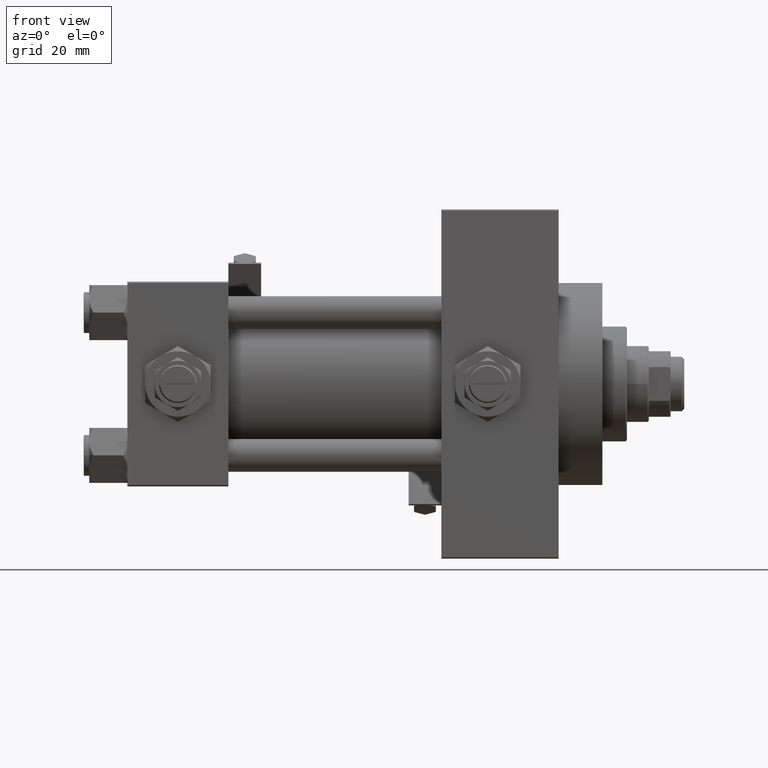
[diagram: clean part render]
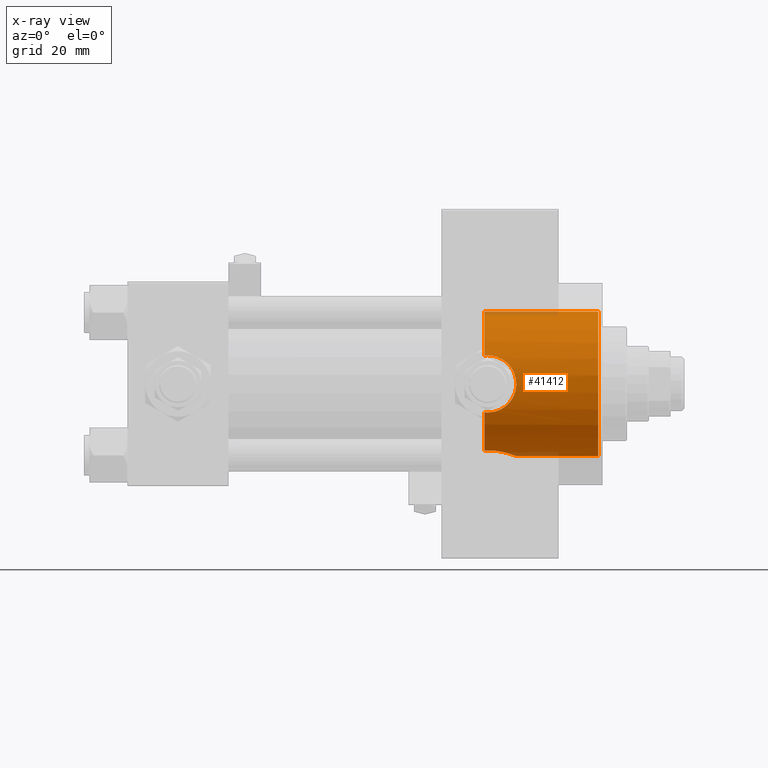
[diagram: x-ray — body ghosted, one internal face saturated and labeled with its STEP entity id]
A machine part, front view, then the same camera in x-ray: the body is ghosted and one INTERNAL B-rep face — a face not visible from any outside direction — is saturated and labeled: STEP entity #41412.
In plain terms, the highlighted cylindrical surface (partial cylindrical patch) has radius 26.5 mm, axis along (1, 0, 0).
Its self-contained STEP definition (entity closure, byte-faithful):
#262 = VERTEX_POINT ( 'NONE', #30869 ) ;
#324 = CARTESIAN_POINT ( 'NONE',  ( 130.7400000000000091, 0.000000000000000000, 0.000000000000000000 ) ) ;
#1362 = CARTESIAN_POINT ( 'NONE',  ( 132.0000000000000000, -24.33967132070604933, 10.47999999999998799 ) ) ;
#1422 = CARTESIAN_POINT ( 'NONE',  ( 141.8335546017134448, -3.642695553053290958, -26.25084325021122922 ) ) ;
#1675 = CARTESIAN_POINT ( 'NONE',  ( 135.5115735695664227, -9.881194972351261541, -24.58915736193083390 ) ) ;
#2188 = CARTESIAN_POINT ( 'NONE',  ( 142.0665133812162537, -2.938253791439163987, -26.33899517628734088 ) ) ;
#2271 = CARTESIAN_POINT ( 'NONE',  ( 140.8904987776702455, -25.91192981801192730, 5.559420023815748735 ) ) ;
#2354 = ORIENTED_EDGE ( 'NONE', *, *, #29650, .T. ) ;
#2533 = CARTESIAN_POINT ( 'NONE',  ( 136.6659000583123031, -24.77500862834707362, 9.408993987884874954 ) ) ;
#2591 = CARTESIAN_POINT ( 'NONE',  ( 130.7400000000000091, -24.37226292324946542, -10.40398000767012299 ) ) ;
#2642 = CIRCLE ( 'NONE', #6829, 26.50000000000000355 ) ;
#2787 = CARTESIAN_POINT ( 'NONE',  ( 136.3489237122697659, -24.72318467201153425, -9.541179571695405315 ) ) ;
#3044 = CARTESIAN_POINT ( 'NONE',  ( 132.6904960883777846, -24.33967132070604578, -10.47999999999998622 ) ) ;
#3439 = B_SPLINE_CURVE_WITH_KNOTS ( 'NONE', 3,
 ( #1362, #46070, #41628, #49230 ),
 .UNSPECIFIED., .F., .F.,
 ( 4, 4 ),
 ( 0.03437190755806009829, 0.03561776921873222035 ),
 .UNSPECIFIED. ) ;
#3454 = VERTEX_POINT ( 'NONE', #48166 ) ;
#3704 = ORIENTED_EDGE ( 'NONE', *, *, #7615, .T. ) ;
#5102 = CARTESIAN_POINT ( 'NONE',  ( 138.3983008714430412, -8.308216825530742256, -25.16494175890555596 ) ) ;
#5357 = VERTEX_POINT ( 'NONE', #17874 ) ;
#5368 = CARTESIAN_POINT ( 'NONE',  ( 142.4800000000001603, 1.044554930096985600E-14, -26.50000000000006750 ) ) ;
#5544 = CIRCLE ( 'NONE', #24767, 26.50000000000000355 ) ;
#5614 = CARTESIAN_POINT ( 'NONE',  ( 139.9981355541606547, -6.811571481472481260, -25.61680511670812876 ) ) ;
#5856 = CARTESIAN_POINT ( 'NONE',  ( 130.7400000000000091, 0.000000000000000000, 0.000000000000000000 ) ) ;
#5953 = CARTESIAN_POINT ( 'NONE',  ( 139.1663633815065566, -25.37171319999175623, 7.654298772871978684 ) ) ;
#6115 = CARTESIAN_POINT ( 'NONE',  ( 138.6874981071936759, -8.077221093107572969, -25.24030799844106454 ) ) ;
#6457 = CARTESIAN_POINT ( 'NONE',  ( 138.4049404352971351, -25.16229795609818609, -8.322848467437516717 ) ) ;
#6829 = AXIS2_PLACEMENT_3D ( 'NONE', #43183, #35610, #51563 ) ;
#6970 = CARTESIAN_POINT ( 'NONE',  ( 142.4626037639855838, -26.49310609510638770, -0.6963515910539429532 ) ) ;
#7615 = EDGE_CURVE ( 'NONE', #5357, #16522, #49449, .T. ) ;
#8513 = EDGE_CURVE ( 'NONE', #26704, #262, #48174, .T. ) ;
#9017 = CARTESIAN_POINT ( 'NONE',  ( 142.1654842721634111, -2.575241489874372736, -26.37710048711162969 ) ) ;
#9280 = CARTESIAN_POINT ( 'NONE',  ( 142.4800000000000466, -0.7466733969459936615, -26.50000000000001421 ) ) ;
#9529 = CARTESIAN_POINT ( 'NONE',  ( 142.4800000000001603, 1.044554930096985600E-14, -26.50000000000006750 ) ) ;
#9682 = CARTESIAN_POINT ( 'NONE',  ( 130.7400000000000091, -24.37226292324946542, -10.40398000767012299 ) ) ;
#10023 = DIRECTION ( 'NONE',  ( 0.000000000000000000, 0.000000000000000000, -1.000000000000000000 ) ) ;
#10372 = CARTESIAN_POINT ( 'NONE',  ( 138.3864792908362631, -25.16230905708523480, 8.316254619809530624 ) ) ;
#10536 = DIRECTION ( 'NONE',  ( 1.000000000000000000, -0.000000000000000000, -0.000000000000000000 ) ) ;
#10720 = ORIENTED_EDGE ( 'NONE', *, *, #24506, .T. ) ;
#11951 = CARTESIAN_POINT ( 'NONE',  ( 132.0000000000000000, -24.33967132070604933, 10.47999999999998799 ) ) ;
#12197 = CARTESIAN_POINT ( 'NONE',  ( 132.6982936874238703, -24.33967132070605288, 10.47999999999998799 ) ) ;
#13253 = VERTEX_POINT ( 'NONE', #30522 ) ;
#13458 = CARTESIAN_POINT ( 'NONE',  ( 137.8022832347253086, -8.734885810676995987, -25.02004257437574708 ) ) ;
#14041 = CARTESIAN_POINT ( 'NONE',  ( 138.1110651716822701, -25.09360970262139645, 8.520611273842991551 ) ) ;
#14303 = CARTESIAN_POINT ( 'NONE',  ( 136.6580558779861008, -24.77960996754317691, -9.394203453174519325 ) ) ;
#14558 = CARTESIAN_POINT ( 'NONE',  ( 134.3947302122628287, -24.45488967133339386, 10.20851256290625741 ) ) ;
#14680 = EDGE_CURVE ( 'NONE', #33883, #13253, #5544, .T. ) ;
#14814 = CARTESIAN_POINT ( 'NONE',  ( 139.8811664359166400, -25.58300917221410486, -6.916171625962123315 ) ) ;
#15073 = CARTESIAN_POINT ( 'NONE',  ( 140.5155153844949893, -25.78569419426081311, -6.118106053452856408 ) ) ;
#15638 = B_SPLINE_CURVE_WITH_KNOTS ( 'NONE', 3,
 ( #22151, #3044, #42020, #17971, #31040, #2787, #14303, #30262, #26075, #6457, #22398, #50907, #14814, #26587, #15073, #18742, #30520, #37849, #42793, #38883, #38362, #6970, #33933, #34703, #19001, #25813, #22672, #38107, #42535, #49885, #30772, #45952, #2271, #38627, #41775, #5953, #46209, #10372, #14041, #26329, #2533, #18488, #34449, #50394, #14558, #50649, #12197, #51694 ),
 .UNSPECIFIED., .F., .F.,
 ( 4, 2, 2, 2, 2, 2, 2, 2, 2, 2, 2, 2, 2, 2, 2, 2, 2, 2, 2, 2, 2, 2, 2, 4 ),
 ( 0.001255586767787714641, 0.003325356817179755085, 0.005395126866571796180, 0.006430011891267852289, 0.007464896915963908398, 0.009534666965355952095, 0.01056955199005197438, 0.01160443701474799492, 0.01367420706413999265, 0.01574397711353198864, 0.01677886213822798664, 0.01781374716292398463, 0.01988351721231598410, 0.02091840223701198556, 0.02195328726170798356, 0.02298817228640397808, 0.02402305731109997608, 0.02609282736049197207, 0.02712771238518797007, 0.02816259740988396806, 0.03023236745927596406, 0.03126725248397199675, 0.03230213750866803291, 0.03437190755806009829 ),
 .UNSPECIFIED. ) ;
#16522 = VERTEX_POINT ( 'NONE', #39859 ) ;
#17043 = VERTEX_POINT ( 'NONE', #11951 ) ;
#17368 = CARTESIAN_POINT ( 'NONE',  ( 141.6993435614955956, -3.985990130492289563, -26.20070574291654353 ) ) ;
#17589 = CIRCLE ( 'NONE', #42640, 26.50000000000000355 ) ;
#17632 = CARTESIAN_POINT ( 'NONE',  ( 133.7216423275558839, -10.36418010715236093, -24.38933169417625635 ) ) ;
#17777 = CARTESIAN_POINT ( 'NONE',  ( 131.1611364518797984, -24.35049096341793273, -10.45498279016080012 ) ) ;
#17874 = CARTESIAN_POINT ( 'NONE',  ( 130.7400000000000091, 3.245314017740486554E-15, 26.50000000000000355 ) ) ;
#17971 = CARTESIAN_POINT ( 'NONE',  ( 134.7461877943154036, -24.48462605612511567, -10.13781324604277145 ) ) ;
#18488 = CARTESIAN_POINT ( 'NONE',  ( 135.7173844672076939, -24.61993612039166024, 9.804529592362708712 ) ) ;
#18742 = CARTESIAN_POINT ( 'NONE',  ( 141.0816778311290136, -25.97633853132261450, -5.273786452924785983 ) ) ;
#19001 = CARTESIAN_POINT ( 'NONE',  ( 142.4114040688937735, -26.47265107862980926, 1.382412405478187001 ) ) ;
#20287 = AXIS2_PLACEMENT_3D ( 'NONE', #5856, #10536, #10023 ) ;
#22061 = CARTESIAN_POINT ( 'NONE',  ( 136.8603660912149849, -9.291949300782544441, -24.81826977973610937 ) ) ;
#22100 = ORIENTED_EDGE ( 'NONE', *, *, #34244, .T. ) ;
#22151 = CARTESIAN_POINT ( 'NONE',  ( 132.0000000000000000, -24.33967132070604933, -10.47999999999998444 ) ) ;
#22398 = CARTESIAN_POINT ( 'NONE',  ( 138.9276451403626993, -25.30216499957183984, -7.893159106980509598 ) ) ;
#22672 = CARTESIAN_POINT ( 'NONE',  ( 142.1219222710722647, -26.36027543327035261, 2.738055544399092600 ) ) ;
#23853 = DIRECTION ( 'NONE',  ( 1.000000000000000000, 0.000000000000000000, 0.000000000000000000 ) ) ;
#24506 = EDGE_CURVE ( 'NONE', #26704, #13253, #50387, .T. ) ;
#24623 = DIRECTION ( 'NONE',  ( 0.000000000000000000, 0.000000000000000000, -1.000000000000000000 ) ) ;
#24767 = AXIS2_PLACEMENT_3D ( 'NONE', #324, #23853, #24623 ) ;
#24871 = CARTESIAN_POINT ( 'NONE',  ( 130.7400000000000091, 0.000000000000000000, -26.50000000000000355 ) ) ;
#24965 = CARTESIAN_POINT ( 'NONE',  ( 131.4868983507927283, -10.49443499905852661, -24.33364968799253703 ) ) ;
#25265 = CARTESIAN_POINT ( 'NONE',  ( 130.7400000000000091, -24.37226292324946186, 10.40398000767012654 ) ) ;
#25542 = CARTESIAN_POINT ( 'NONE',  ( 130.7400000000000091, 0.000000000000000000, 0.000000000000000000 ) ) ;
#25813 = CARTESIAN_POINT ( 'NONE',  ( 142.2075249541714754, -26.39335609204158573, 2.399236127628234794 ) ) ;
#25977 = FACE_OUTER_BOUND ( 'NONE', #40367, .T. ) ;
#26075 = CARTESIAN_POINT ( 'NONE',  ( 137.5577538920436496, -24.96463143003449758, -8.891425016462831010 ) ) ;
#26329 = CARTESIAN_POINT ( 'NONE',  ( 137.2636119660473923, -24.89625137302611080, 9.087734872939162045 ) ) ;
#26587 = CARTESIAN_POINT ( 'NONE',  ( 140.3132647636415413, -25.71940794313461254, -6.390292897823897533 ) ) ;
#26704 = VERTEX_POINT ( 'NONE', #5368 ) ;
#26996 = ORIENTED_EDGE ( 'NONE', *, *, #37298, .F. ) ;
#27146 = VECTOR ( 'NONE', #31968, 1000.000000000000000 ) ;
#28900 = CARTESIAN_POINT ( 'NONE',  ( 134.4459359432478323, -10.21777125531389174, -24.45211332338677579 ) ) ;
#29650 = EDGE_CURVE ( 'NONE', #16522, #262, #2642, .T. ) ;
#30262 = CARTESIAN_POINT ( 'NONE',  ( 137.2635990777562256, -24.90054338428140568, -9.068796382691630242 ) ) ;
#30520 = CARTESIAN_POINT ( 'NONE',  ( 141.4057128516256228, -26.09263577897064224, -4.673612418766440513 ) ) ;
#30522 = CARTESIAN_POINT ( 'NONE',  ( 130.7400000000000091, -10.40398000767012832, -24.37226292324946186 ) ) ;
#30749 = ORIENTED_EDGE ( 'NONE', *, *, #36377, .T. ) ;
#30772 = CARTESIAN_POINT ( 'NONE',  ( 141.3916535229813576, -26.08830885934474253, 4.663043711798783519 ) ) ;
#30869 = CARTESIAN_POINT ( 'NONE',  ( 172.5000000000000000, 0.000000000000000000, -26.50000000000000355 ) ) ;
#31040 = CARTESIAN_POINT ( 'NONE',  ( 135.4024368383432204, -24.56844862672226881, -9.935854460437951730 ) ) ;
#31968 = DIRECTION ( 'NONE',  ( 1.000000000000000000, -0.000000000000000000, -0.000000000000000000 ) ) ;
#33239 = DIRECTION ( 'NONE',  ( 1.000000000000000000, -0.000000000000000000, -0.000000000000000000 ) ) ;
#33517 = B_SPLINE_CURVE_WITH_KNOTS ( 'NONE', 3,
 ( #2591, #17777, #47041, #39705 ),
 .UNSPECIFIED., .F., .F.,
 ( 4, 4 ),
 ( 0.000000000000000000, 0.001255586767787714641 ),
 .UNSPECIFIED. ) ;
#33660 = DIRECTION ( 'NONE',  ( 1.000000000000000000, 0.000000000000000000, 0.000000000000000000 ) ) ;
#33883 = VERTEX_POINT ( 'NONE', #9682 ) ;
#33933 = CARTESIAN_POINT ( 'NONE',  ( 142.4800680225663712, -26.50002690099940494, -0.3451042088078350445 ) ) ;
#34104 = CARTESIAN_POINT ( 'NONE',  ( 136.5335921408433251, -9.455792512420339690, -24.75606841526505519 ) ) ;
#34244 = EDGE_CURVE ( 'NONE', #3454, #17043, #15638, .T. ) ;
#34449 = CARTESIAN_POINT ( 'NONE',  ( 135.3904700717597223, -24.57248644795726022, 9.922439993611760656 ) ) ;
#34703 = CARTESIAN_POINT ( 'NONE',  ( 142.4798633477534224, -26.49994595790487750, 0.6963870350870441372 ) ) ;
#35610 = DIRECTION ( 'NONE',  ( 1.000000000000000000, 0.000000000000000000, 0.000000000000000000 ) ) ;
#36305 = VECTOR ( 'NONE', #33239, 1000.000000000000000 ) ;
#36377 = EDGE_CURVE ( 'NONE', #33883, #3454, #33517, .T. ) ;
#37262 = CARTESIAN_POINT ( 'NONE',  ( 142.4011065554137758, -1.483758503940583839, -26.46850309434598003 ) ) ;
#37298 = EDGE_CURVE ( 'NONE', #5357, #44857, #17589, .T. ) ;
#37496 = CYLINDRICAL_SURFACE ( 'NONE', #20287, 26.50000000000000355 ) ;
#37512 = CARTESIAN_POINT ( 'NONE',  ( 137.4947120380321905, -8.931495953537146093, -24.95025484238639990 ) ) ;
#37768 = CARTESIAN_POINT ( 'NONE',  ( 140.8553297434205831, -5.616857363200505660, -25.89992295911058307 ) ) ;
#37849 = CARTESIAN_POINT ( 'NONE',  ( 141.9389570606566053, -26.28956209411558476, -3.395175965175881938 ) ) ;
#38024 = CARTESIAN_POINT ( 'NONE',  ( 140.6508763872861323, -5.926808359427509387, -25.83050513016100069 ) ) ;
#38107 = CARTESIAN_POINT ( 'NONE',  ( 141.9191483855533988, -26.28308039691835774, 3.400110870430087306 ) ) ;
#38261 = ORIENTED_EDGE ( 'NONE', *, *, #8513, .F. ) ;
#38331 = DIRECTION ( 'NONE',  ( 0.000000000000000000, 0.000000000000000000, -1.000000000000000000 ) ) ;
#38362 = CARTESIAN_POINT ( 'NONE',  ( 142.3935590552673602, -26.46591511510092332, -1.387412420731378715 ) ) ;
#38441 = ORIENTED_EDGE ( 'NONE', *, *, #14680, .F. ) ;
#38553 = EDGE_CURVE ( 'NONE', #17043, #44857, #3439, .T. ) ;
#38627 = CARTESIAN_POINT ( 'NONE',  ( 140.3165002292777785, -25.71874665637611912, 6.413821170274206729 ) ) ;
#38883 = CARTESIAN_POINT ( 'NONE',  ( 142.3421836049517140, -26.44572692659851754, -1.728475508984261610 ) ) ;
#39057 = CARTESIAN_POINT ( 'NONE',  ( 130.7400000000000091, -10.40398000767012832, -24.37226292324946186 ) ) ;
#39705 = CARTESIAN_POINT ( 'NONE',  ( 132.0000000000000000, -24.33967132070604933, -10.47999999999998444 ) ) ;
#39859 = CARTESIAN_POINT ( 'NONE',  ( 172.5000000000000000, 3.245314017740486554E-15, 26.50000000000000355 ) ) ;
#40367 = EDGE_LOOP ( 'NONE', ( #26996, #3704, #2354, #38261, #10720, #38441, #30749, #22100, #48698 ) ) ;
#40924 = CARTESIAN_POINT ( 'NONE',  ( 135.8600678267363833, -9.750145953289925060, -24.64162310621548713 ) ) ;
#41412 = ADVANCED_FACE ( 'NONE', ( #25977 ), #37496, .F. ) ;
#41435 = CARTESIAN_POINT ( 'NONE',  ( 141.3963988635402700, -4.655434592126345805, -26.09007526830297863 ) ) ;
#41628 = CARTESIAN_POINT ( 'NONE',  ( 131.1580741051582208, -24.35064928096444703, 10.45461191700780645 ) ) ;
#41775 = CARTESIAN_POINT ( 'NONE',  ( 139.8850942087586304, -25.58093385762821725, 6.936447548980003042 ) ) ;
#41846 = CARTESIAN_POINT ( 'NONE',  ( 130.7400000000000091, 3.245314017740486554E-15, 26.50000000000000355 ) ) ;
#41942 = CARTESIAN_POINT ( 'NONE',  ( 139.5076201536012093, -7.348534936426551312, -25.46581292754183679 ) ) ;
#42020 = CARTESIAN_POINT ( 'NONE',  ( 133.3786097457406470, -24.36915941385105100, -10.41231194222668321 ) ) ;
#42535 = CARTESIAN_POINT ( 'NONE',  ( 141.8022638174866472, -26.23907308479209988, 3.723318718764343949 ) ) ;
#42640 = AXIS2_PLACEMENT_3D ( 'NONE', #25542, #33660, #38331 ) ;
#42793 = CARTESIAN_POINT ( 'NONE',  ( 142.1391112229687792, -26.36675217432884466, -2.738755341944245636 ) ) ;
#43183 = CARTESIAN_POINT ( 'NONE',  ( 172.5000000000000000, 0.000000000000000000, 0.000000000000000000 ) ) ;
#44846 = CARTESIAN_POINT ( 'NONE',  ( 132.2451057705677329, -10.50334255171939013, -24.32972513250578928 ) ) ;
#44857 = VERTEX_POINT ( 'NONE', #25265 ) ;
#45952 = CARTESIAN_POINT ( 'NONE',  ( 141.0679913760332624, -25.97354752128885025, 5.264851845784581208 ) ) ;
#46070 = CARTESIAN_POINT ( 'NONE',  ( 131.5796744023297435, -24.33967132070604933, 10.47999999999998799 ) ) ;
#46209 = CARTESIAN_POINT ( 'NONE',  ( 138.9147507852791534, -25.30155050139244111, 7.882476147205575323 ) ) ;
#47041 = CARTESIAN_POINT ( 'NONE',  ( 131.5811236364006049, -24.33967132070604933, -10.47999999999998444 ) ) ;
#48166 = CARTESIAN_POINT ( 'NONE',  ( 132.0000000000000000, -24.33967132070604933, -10.47999999999998444 ) ) ;
#48174 = LINE ( 'NONE', #24871, #27146 ) ;
#48698 = ORIENTED_EDGE ( 'NONE', *, *, #38553, .T. ) ;
#49230 = CARTESIAN_POINT ( 'NONE',  ( 130.7400000000000091, -24.37226292324946186, 10.40398000767012654 ) ) ;
#49292 = CARTESIAN_POINT ( 'NONE',  ( 141.2276638786151750, -4.981583166679961039, -26.02957788900645397 ) ) ;
#49449 = LINE ( 'NONE', #41846, #36305 ) ;
#49885 = CARTESIAN_POINT ( 'NONE',  ( 141.5385175848663266, -26.14168889184969657, 4.354785931857517056 ) ) ;
#50387 = B_SPLINE_CURVE_WITH_KNOTS ( 'NONE', 3,
 ( #9529, #9280, #37262, #9017, #2188, #1422, #17368, #41435, #49292, #37768, #38024, #5614, #41942, #6115, #5102, #13458, #37512, #22061, #34104, #40924, #1675, #28900, #17632, #44846, #24965, #39057 ),
 .UNSPECIFIED., .F., .F.,
 ( 4, 2, 2, 2, 2, 2, 2, 2, 2, 2, 2, 2, 4 ),
 ( 0.01781170071191079049, 0.02003745927526348961, 0.02115033855693983916, 0.02226321783861619219, 0.02337609712029254175, 0.02448897640196889131, 0.02671473496532159389, 0.02782761424699794345, 0.02894049352867429648, 0.03005337281035064950, 0.03116625209202700253, 0.03339201065537962532, 0.03561776921873225504 ),
 .UNSPECIFIED. ) ;
#50394 = CARTESIAN_POINT ( 'NONE',  ( 134.7286532048194090, -24.48994387988090438, 10.12445329003760008 ) ) ;
#50649 = CARTESIAN_POINT ( 'NONE',  ( 133.3839948142214951, -24.36973996242157980, 10.41091756284551728 ) ) ;
#50907 = CARTESIAN_POINT ( 'NONE',  ( 139.6501220615577097, -25.51256335955728005, -7.170912732211439433 ) ) ;
#51563 = DIRECTION ( 'NONE',  ( 0.000000000000000000, 0.000000000000000000, -1.000000000000000000 ) ) ;
#51694 = CARTESIAN_POINT ( 'NONE',  ( 132.0000000000000000, -24.33967132070604933, 10.47999999999998799 ) ) ;